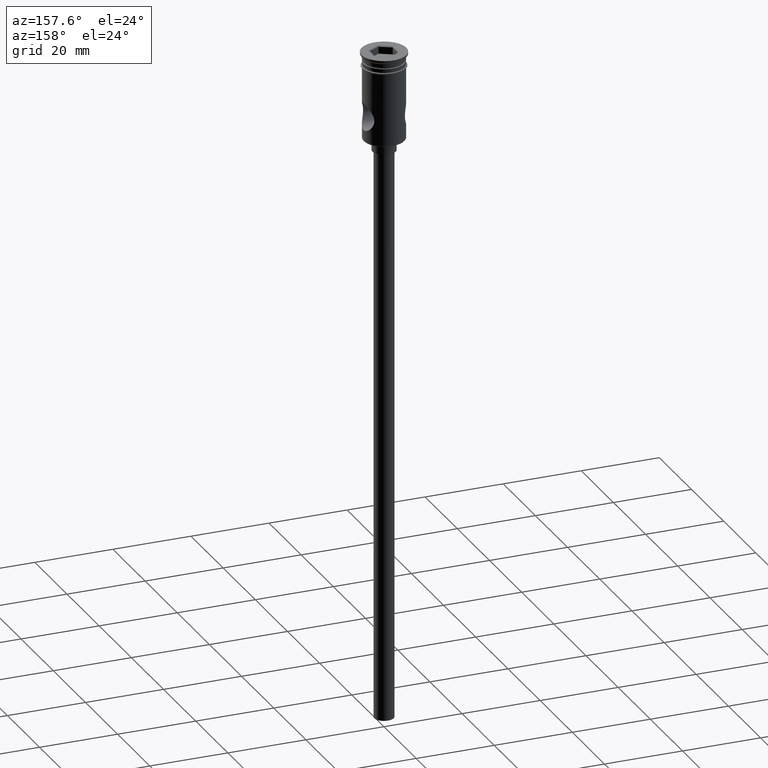
[diagram: clean part render]
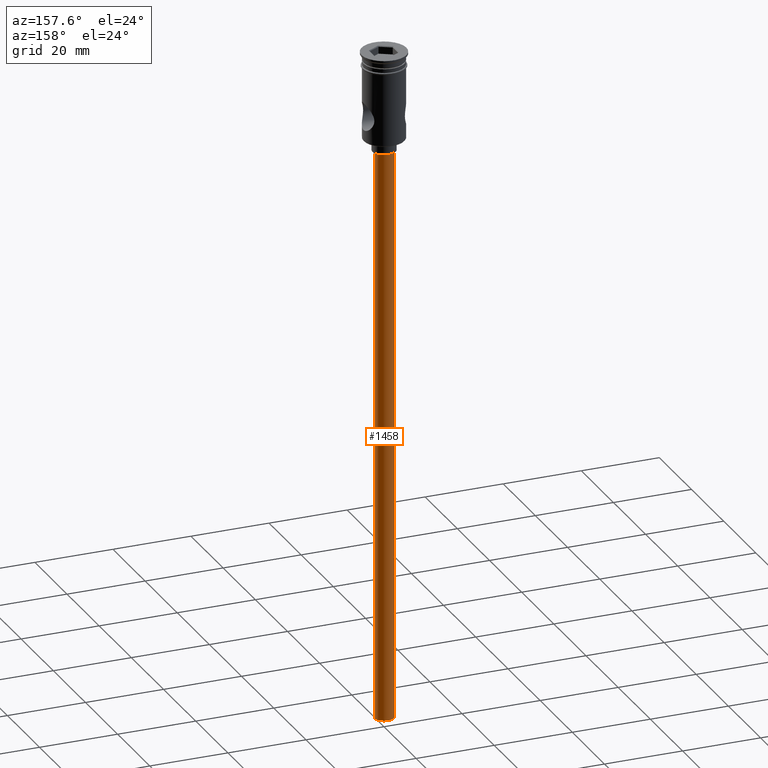
[diagram: same view with one face highlighted and labeled with its STEP entity id]
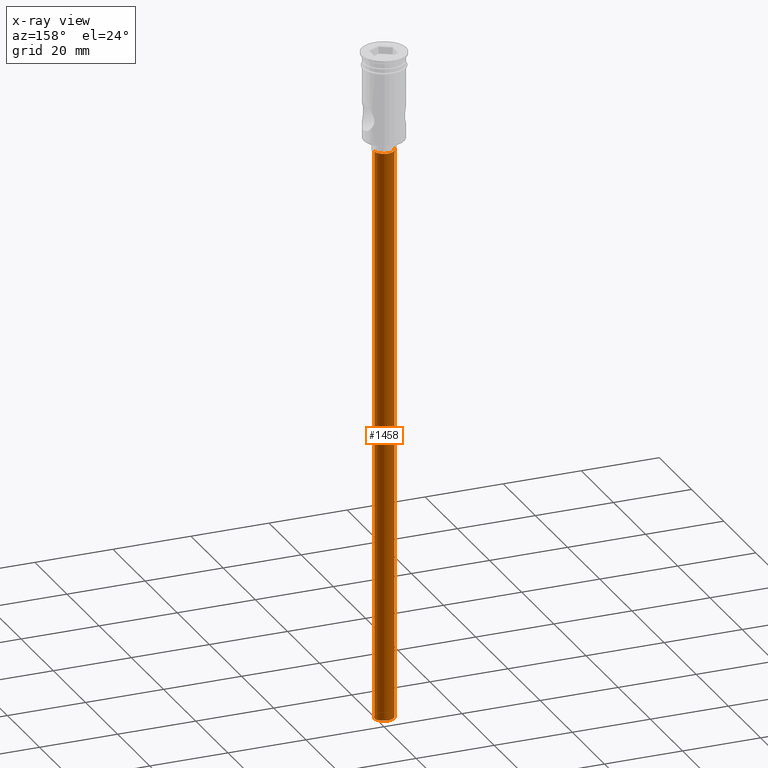
[diagram: x-ray of the same camera — body ghosted, the highlighted face saturated]
A machine part, auxiliary view. The second image highlights one B-rep face of the part: STEP entity #1458.
The next image is the same camera in x-ray: the body ghosted, the highlighted face saturated — about 0% of this face is hidden behind the body in this view.
In plain terms, the highlighted cylindrical surface (edge-blend (fillet) strip) has radius 2.5 mm, axis along (-0, -0, 1).
Its self-contained STEP definition (entity closure, byte-faithful):
#13 = CIRCLE ( 'NONE', #1269, 2.500000000000000000 ) ;
#66 = ORIENTED_EDGE ( 'NONE', *, *, #1257, .F. ) ;
#117 = EDGE_CURVE ( 'NONE', #1456, #1434, #264, .T. ) ;
#192 = CYLINDRICAL_SURFACE ( 'NONE', #254, 2.500000000000000000 ) ;
#219 = CARTESIAN_POINT ( 'NONE',  ( -2.500000000000000000, 3.061616997868383141E-16, -25.50000000000000000 ) ) ;
#254 = AXIS2_PLACEMENT_3D ( 'NONE', #384, #404, #643 ) ;
#264 = LINE ( 'NONE', #482, #932 ) ;
#270 = ORIENTED_EDGE ( 'NONE', *, *, #1154, .T. ) ;
#276 = VECTOR ( 'NONE', #999, 1000.000000000000000 ) ;
#325 = DIRECTION ( 'NONE',  ( -1.000000000000000000, 0.000000000000000000, 0.000000000000000000 ) ) ;
#384 = CARTESIAN_POINT ( 'NONE',  ( 0.000000000000000000, 0.000000000000000000, -172.5000000000000000 ) ) ;
#404 = DIRECTION ( 'NONE',  ( -0.000000000000000000, -0.000000000000000000, 1.000000000000000000 ) ) ;
#482 = CARTESIAN_POINT ( 'NONE',  ( 2.500000000000000000, 0.000000000000000000, -172.5000000000000000 ) ) ;
#486 = ORIENTED_EDGE ( 'NONE', *, *, #117, .F. ) ;
#499 = DIRECTION ( 'NONE',  ( 0.000000000000000000, 0.000000000000000000, -1.000000000000000000 ) ) ;
#572 = CARTESIAN_POINT ( 'NONE',  ( 0.000000000000000000, 0.000000000000000000, -25.50000000000000000 ) ) ;
#635 = CIRCLE ( 'NONE', #840, 2.500000000000000000 ) ;
#643 = DIRECTION ( 'NONE',  ( 1.000000000000000000, 0.000000000000000000, 0.000000000000000000 ) ) ;
#670 = LINE ( 'NONE', #1126, #276 ) ;
#758 = CARTESIAN_POINT ( 'NONE',  ( 2.500000000000000000, 0.000000000000000000, -25.50000000000000000 ) ) ;
#831 = CARTESIAN_POINT ( 'NONE',  ( 2.500000000000000000, 0.000000000000000000, -172.5000000000000000 ) ) ;
#840 = AXIS2_PLACEMENT_3D ( 'NONE', #1044, #499, #937 ) ;
#932 = VECTOR ( 'NONE', #1258, 1000.000000000000000 ) ;
#937 = DIRECTION ( 'NONE',  ( -1.000000000000000000, 0.000000000000000000, 0.000000000000000000 ) ) ;
#999 = DIRECTION ( 'NONE',  ( -0.000000000000000000, -0.000000000000000000, 1.000000000000000000 ) ) ;
#1044 = CARTESIAN_POINT ( 'NONE',  ( 0.000000000000000000, 0.000000000000000000, -172.5000000000000000 ) ) ;
#1068 = FACE_OUTER_BOUND ( 'NONE', #1407, .T. ) ;
#1095 = VERTEX_POINT ( 'NONE', #219 ) ;
#1122 = VERTEX_POINT ( 'NONE', #1248 ) ;
#1126 = CARTESIAN_POINT ( 'NONE',  ( -2.500000000000000000, 3.061616997868383141E-16, -172.5000000000000000 ) ) ;
#1154 = EDGE_CURVE ( 'NONE', #1095, #1434, #13, .T. ) ;
#1223 = EDGE_CURVE ( 'NONE', #1122, #1095, #670, .T. ) ;
#1248 = CARTESIAN_POINT ( 'NONE',  ( -2.500000000000000000, 3.061616997868383141E-16, -172.5000000000000000 ) ) ;
#1257 = EDGE_CURVE ( 'NONE', #1122, #1456, #635, .T. ) ;
#1258 = DIRECTION ( 'NONE',  ( -0.000000000000000000, -0.000000000000000000, 1.000000000000000000 ) ) ;
#1269 = AXIS2_PLACEMENT_3D ( 'NONE', #572, #1335, #325 ) ;
#1335 = DIRECTION ( 'NONE',  ( 0.000000000000000000, 0.000000000000000000, -1.000000000000000000 ) ) ;
#1407 = EDGE_LOOP ( 'NONE', ( #66, #1467, #270, #486 ) ) ;
#1434 = VERTEX_POINT ( 'NONE', #758 ) ;
#1456 = VERTEX_POINT ( 'NONE', #831 ) ;
#1458 = ADVANCED_FACE ( 'NONE', ( #1068 ), #192, .T. ) ;
#1467 = ORIENTED_EDGE ( 'NONE', *, *, #1223, .T. ) ;